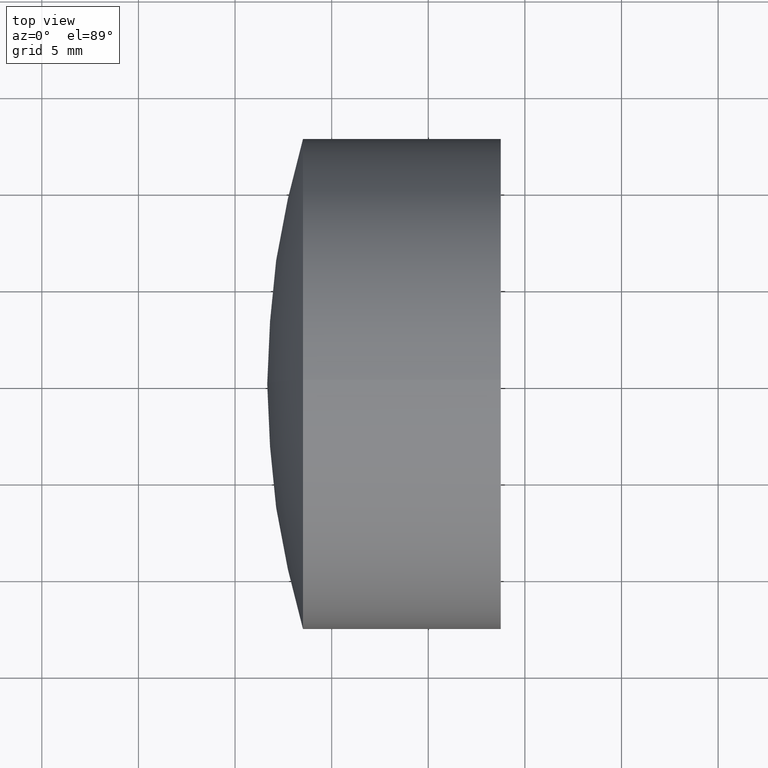
[diagram: clean part render]
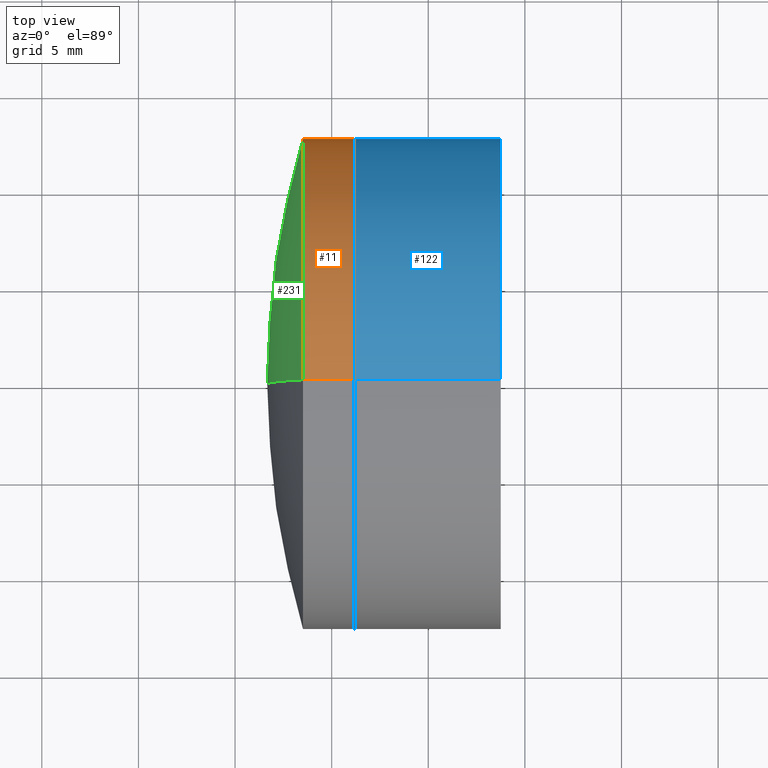
[diagram: same view with three faces highlighted in distinct colors, each labeled with its STEP entity id]
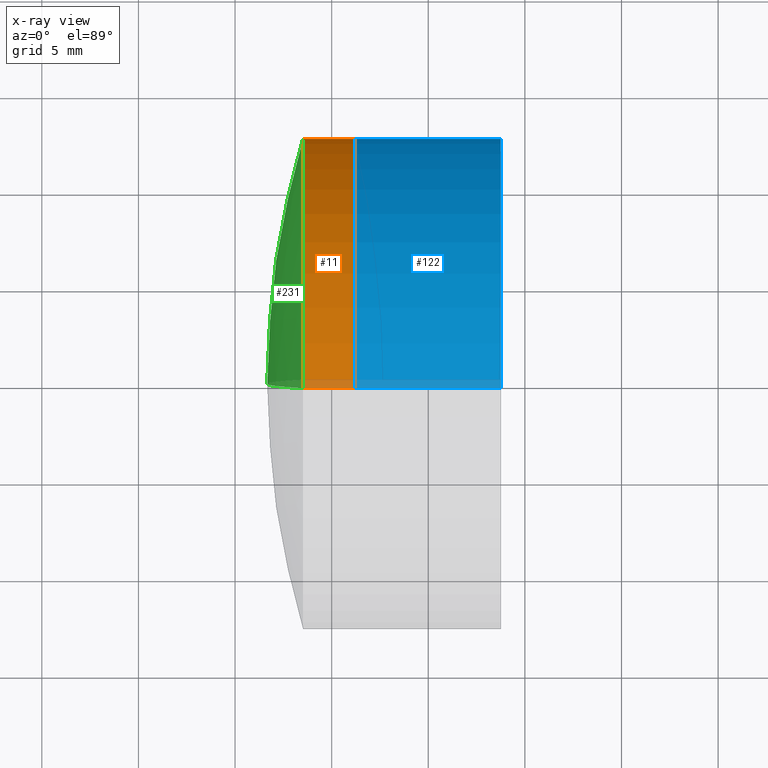
[diagram: x-ray of the same camera — body ghosted, the three highlighted faces saturated]
A machine part, top view with three faces highlighted in distinct colors.
The next image is the same camera in x-ray (body ghosted, the three faces saturated) — at least one of them is partly hidden behind the body in this view.
Their STEP definitions:

[orange] entity #11 — the highlighted cylindrical surface (partial cylindrical patch) has radius 12.7 mm, axis along (-1, -0, -0).
#11 = ADVANCED_FACE ( 'NONE', ( #296 ), #307, .T. ) ;
#15 = ORIENTED_EDGE ( 'NONE', *, *, #126, .F. ) ;
#20 = AXIS2_PLACEMENT_3D ( 'NONE', #61, #118, #279 ) ;
#23 = CARTESIAN_POINT ( 'NONE',  ( 313.5157627605192400, -1.555301434917138800E-015, 12.70000000000000600 ) ) ;
#25 = EDGE_CURVE ( 'NONE', #211, #70, #344, .T. ) ;
#28 = CARTESIAN_POINT ( 'NONE',  ( 124.5233095260452400, 0.0000000000000000000, 12.70000000000000600 ) ) ;
#46 = CARTESIAN_POINT ( 'NONE',  ( 316.1869586626397700, 0.0000000000000000000, 0.0000000000000000000 ) ) ;
#60 = EDGE_CURVE ( 'NONE', #211, #64, #150, .T. ) ;
#61 = CARTESIAN_POINT ( 'NONE',  ( 313.5157627605192400, 0.0000000000000000000, 0.0000000000000000000 ) ) ;
#64 = VERTEX_POINT ( 'NONE', #286 ) ;
#66 = CARTESIAN_POINT ( 'NONE',  ( 316.1869586626397700, 0.0000000000000000000, 12.70000000000000600 ) ) ;
#68 = DIRECTION ( 'NONE',  ( -1.000000000000000000, -0.0000000000000000000, -0.0000000000000000000 ) ) ;
#70 = VERTEX_POINT ( 'NONE', #23 ) ;
#75 = VERTEX_POINT ( 'NONE', #152 ) ;
#79 = EDGE_LOOP ( 'NONE', ( #261, #328, #15, #337 ) ) ;
#85 = AXIS2_PLACEMENT_3D ( 'NONE', #101, #155, #290 ) ;
#101 = CARTESIAN_POINT ( 'NONE',  ( 124.5233095260452400, 0.0000000000000000000, 0.0000000000000000000 ) ) ;
#118 = DIRECTION ( 'NONE',  ( -1.000000000000000000, -0.0000000000000000000, -0.0000000000000000000 ) ) ;
#126 = EDGE_CURVE ( 'NONE', #70, #75, #158, .T. ) ;
#150 = CIRCLE ( 'NONE', #330, 12.70000000000000600 ) ;
#152 = CARTESIAN_POINT ( 'NONE',  ( 313.5157627605192400, 0.0000000000000000000, -12.69999999999999900 ) ) ;
#155 = DIRECTION ( 'NONE',  ( -1.000000000000000000, -0.0000000000000000000, -0.0000000000000000000 ) ) ;
#158 = CIRCLE ( 'NONE', #20, 12.70000000000000600 ) ;
#182 = DIRECTION ( 'NONE',  ( -1.000000000000000000, -0.0000000000000000000, -0.0000000000000000000 ) ) ;
#202 = DIRECTION ( 'NONE',  ( 0.0000000000000000000, 0.0000000000000000000, 1.000000000000000000 ) ) ;
#211 = VERTEX_POINT ( 'NONE', #66 ) ;
#233 = EDGE_CURVE ( 'NONE', #64, #75, #260, .T. ) ;
#234 = DIRECTION ( 'NONE',  ( -1.000000000000000000, -0.0000000000000000000, -0.0000000000000000000 ) ) ;
#248 = CARTESIAN_POINT ( 'NONE',  ( 124.5233095260452400, 1.555301434917139200E-015, -12.70000000000000600 ) ) ;
#260 = LINE ( 'NONE', #248, #305 ) ;
#261 = ORIENTED_EDGE ( 'NONE', *, *, #60, .T. ) ;
#279 = DIRECTION ( 'NONE',  ( 0.0000000000000000000, 0.0000000000000000000, 1.000000000000000000 ) ) ;
#286 = CARTESIAN_POINT ( 'NONE',  ( 316.1869586626397700, 1.555301434917139200E-015, -12.70000000000000600 ) ) ;
#290 = DIRECTION ( 'NONE',  ( 0.0000000000000000000, 0.0000000000000000000, 1.000000000000000000 ) ) ;
#296 = FACE_OUTER_BOUND ( 'NONE', #79, .T. ) ;
#305 = VECTOR ( 'NONE', #68, 1000.000000000000000 ) ;
#307 = CYLINDRICAL_SURFACE ( 'NONE', #85, 12.70000000000000600 ) ;
#328 = ORIENTED_EDGE ( 'NONE', *, *, #233, .T. ) ;
#330 = AXIS2_PLACEMENT_3D ( 'NONE', #46, #234, #202 ) ;
#337 = ORIENTED_EDGE ( 'NONE', *, *, #25, .F. ) ;
#340 = VECTOR ( 'NONE', #182, 1000.000000000000000 ) ;
#344 = LINE ( 'NONE', #28, #340 ) ;

[blue] entity #122 — the highlighted cylindrical surface (partial cylindrical patch) has radius 12.7 mm, axis along (-1, -0, -0).
#17 = CARTESIAN_POINT ( 'NONE',  ( 316.1869586626397700, 0.0000000000000000000, 12.70000000000000500 ) ) ;
#37 = ORIENTED_EDGE ( 'NONE', *, *, #215, .T. ) ;
#41 = EDGE_CURVE ( 'NONE', #273, #50, #153, .T. ) ;
#50 = VERTEX_POINT ( 'NONE', #56 ) ;
#56 = CARTESIAN_POINT ( 'NONE',  ( 316.1869586626397700, 1.555301434917139200E-015, -12.69999999999999800 ) ) ;
#76 = VERTEX_POINT ( 'NONE', #89 ) ;
#89 = CARTESIAN_POINT ( 'NONE',  ( 323.7517025405593900, 1.555301434917136700E-015, -12.69999999999997100 ) ) ;
#98 = DIRECTION ( 'NONE',  ( -1.000000000000000000, -0.0000000000000000000, -0.0000000000000000000 ) ) ;
#116 = ORIENTED_EDGE ( 'NONE', *, *, #41, .F. ) ;
#120 = CYLINDRICAL_SURFACE ( 'NONE', #147, 12.69999999999999200 ) ;
#122 = ADVANCED_FACE ( 'NONE', ( #236 ), #120, .T. ) ;
#131 = AXIS2_PLACEMENT_3D ( 'NONE', #315, #98, #317 ) ;
#140 = DIRECTION ( 'NONE',  ( -1.000000000000000000, -0.0000000000000000000, -0.0000000000000000000 ) ) ;
#142 = DIRECTION ( 'NONE',  ( -1.000000000000000000, -0.0000000000000000000, -0.0000000000000000000 ) ) ;
#144 = CARTESIAN_POINT ( 'NONE',  ( -0.5519199926577972300, 0.0000000000000000000, 12.69999999999999200 ) ) ;
#147 = AXIS2_PLACEMENT_3D ( 'NONE', #214, #197, #187 ) ;
#153 = CIRCLE ( 'NONE', #131, 12.70000000000001400 ) ;
#165 = CARTESIAN_POINT ( 'NONE',  ( -0.5519199926577972300, 1.555301434917137800E-015, -12.69999999999999200 ) ) ;
#170 = DIRECTION ( 'NONE',  ( -1.000000000000000000, -0.0000000000000000000, -0.0000000000000000000 ) ) ;
#179 = EDGE_CURVE ( 'NONE', #76, #50, #194, .T. ) ;
#187 = DIRECTION ( 'NONE',  ( 0.0000000000000000000, 0.0000000000000000000, 1.000000000000000000 ) ) ;
#194 = LINE ( 'NONE', #165, #220 ) ;
#197 = DIRECTION ( 'NONE',  ( -1.000000000000000000, -0.0000000000000000000, -0.0000000000000000000 ) ) ;
#201 = EDGE_LOOP ( 'NONE', ( #37, #342, #116, #303 ) ) ;
#214 = CARTESIAN_POINT ( 'NONE',  ( -0.5519199926577972300, 0.0000000000000000000, 0.0000000000000000000 ) ) ;
#215 = EDGE_CURVE ( 'NONE', #347, #76, #281, .T. ) ;
#220 = VECTOR ( 'NONE', #140, 1000.000000000000000 ) ;
#226 = AXIS2_PLACEMENT_3D ( 'NONE', #304, #142, #334 ) ;
#236 = FACE_OUTER_BOUND ( 'NONE', #201, .T. ) ;
#269 = EDGE_CURVE ( 'NONE', #347, #273, #319, .T. ) ;
#273 = VERTEX_POINT ( 'NONE', #17 ) ;
#276 = CARTESIAN_POINT ( 'NONE',  ( 323.7517025405593900, 0.0000000000000000000, 12.69999999999997100 ) ) ;
#281 = CIRCLE ( 'NONE', #226, 12.69999999999997100 ) ;
#303 = ORIENTED_EDGE ( 'NONE', *, *, #269, .F. ) ;
#304 = CARTESIAN_POINT ( 'NONE',  ( 323.7517025405593900, 0.0000000000000000000, 0.0000000000000000000 ) ) ;
#315 = CARTESIAN_POINT ( 'NONE',  ( 316.1869586626397700, 0.0000000000000000000, 0.0000000000000000000 ) ) ;
#317 = DIRECTION ( 'NONE',  ( 0.0000000000000000000, 0.0000000000000000000, 1.000000000000000000 ) ) ;
#319 = LINE ( 'NONE', #144, #345 ) ;
#334 = DIRECTION ( 'NONE',  ( 0.0000000000000000000, 0.0000000000000000000, 1.000000000000000000 ) ) ;
#342 = ORIENTED_EDGE ( 'NONE', *, *, #179, .T. ) ;
#345 = VECTOR ( 'NONE', #170, 1000.000000000000000 ) ;
#347 = VERTEX_POINT ( 'NONE', #276 ) ;

[green] entity #231 — the highlighted spherical surface has radius 44.5 mm.
#6 = EDGE_CURVE ( 'NONE', #75, #133, #320, .T. ) ;
#20 = AXIS2_PLACEMENT_3D ( 'NONE', #61, #118, #279 ) ;
#23 = CARTESIAN_POINT ( 'NONE',  ( 313.5157627605192400, -1.555301434917138800E-015, 12.70000000000000600 ) ) ;
#61 = CARTESIAN_POINT ( 'NONE',  ( 313.5157627605192400, 0.0000000000000000000, 0.0000000000000000000 ) ) ;
#70 = VERTEX_POINT ( 'NONE', #23 ) ;
#73 = DIRECTION ( 'NONE',  ( 0.0000000000000000000, 1.224646799147353200E-016, -1.000000000000000000 ) ) ;
#75 = VERTEX_POINT ( 'NONE', #152 ) ;
#80 = EDGE_CURVE ( 'NONE', #70, #133, #255, .T. ) ;
#86 = DIRECTION ( 'NONE',  ( 0.0000000000000000000, 0.0000000000000000000, -1.000000000000000000 ) ) ;
#95 = DIRECTION ( 'NONE',  ( 0.0000000000000000000, -1.000000000000000000, -1.224646799147353200E-016 ) ) ;
#104 = EDGE_LOOP ( 'NONE', ( #266, #285, #232 ) ) ;
#115 = CARTESIAN_POINT ( 'NONE',  ( 311.6650300461362200, 0.0000000000000000000, 3.425649882819919400E-015 ) ) ;
#118 = DIRECTION ( 'NONE',  ( -1.000000000000000000, -0.0000000000000000000, -0.0000000000000000000 ) ) ;
#126 = EDGE_CURVE ( 'NONE', #70, #75, #158, .T. ) ;
#129 = CARTESIAN_POINT ( 'NONE',  ( 356.1650300461362800, 0.0000000000000000000, 6.150489010922782300E-015 ) ) ;
#133 = VERTEX_POINT ( 'NONE', #115 ) ;
#152 = CARTESIAN_POINT ( 'NONE',  ( 313.5157627605192400, 0.0000000000000000000, -12.69999999999999900 ) ) ;
#157 = DIRECTION ( 'NONE',  ( 0.0000000000000000000, 0.0000000000000000000, 1.000000000000000000 ) ) ;
#158 = CIRCLE ( 'NONE', #20, 12.70000000000000600 ) ;
#168 = DIRECTION ( 'NONE',  ( -0.0000000000000000000, -1.000000000000000000, -0.0000000000000000000 ) ) ;
#175 = AXIS2_PLACEMENT_3D ( 'NONE', #129, #322, #157 ) ;
#203 = AXIS2_PLACEMENT_3D ( 'NONE', #222, #168, #86 ) ;
#222 = CARTESIAN_POINT ( 'NONE',  ( 356.1650300461362800, 0.0000000000000000000, 6.150489010922782300E-015 ) ) ;
#231 = ADVANCED_FACE ( 'NONE', ( #241 ), #321, .T. ) ;
#232 = ORIENTED_EDGE ( 'NONE', *, *, #6, .T. ) ;
#239 = AXIS2_PLACEMENT_3D ( 'NONE', #333, #95, #73 ) ;
#241 = FACE_OUTER_BOUND ( 'NONE', #104, .T. ) ;
#255 = CIRCLE ( 'NONE', #239, 44.50000000000002800 ) ;
#266 = ORIENTED_EDGE ( 'NONE', *, *, #80, .F. ) ;
#279 = DIRECTION ( 'NONE',  ( 0.0000000000000000000, 0.0000000000000000000, 1.000000000000000000 ) ) ;
#285 = ORIENTED_EDGE ( 'NONE', *, *, #126, .T. ) ;
#320 = CIRCLE ( 'NONE', #175, 44.50000000000002800 ) ;
#321 = SPHERICAL_SURFACE ( 'NONE', #203, 44.50000000000002800 ) ;
#322 = DIRECTION ( 'NONE',  ( 0.0000000000000000000, 1.000000000000000000, -0.0000000000000000000 ) ) ;
#333 = CARTESIAN_POINT ( 'NONE',  ( 356.1650300461362800, 0.0000000000000000000, 6.150489010922782300E-015 ) ) ;